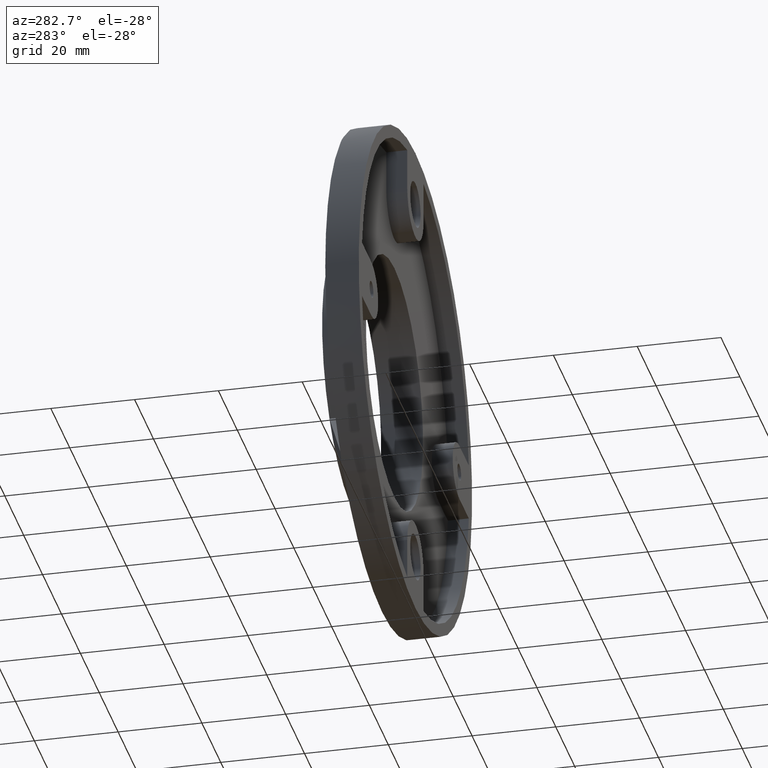
[diagram: clean part render]
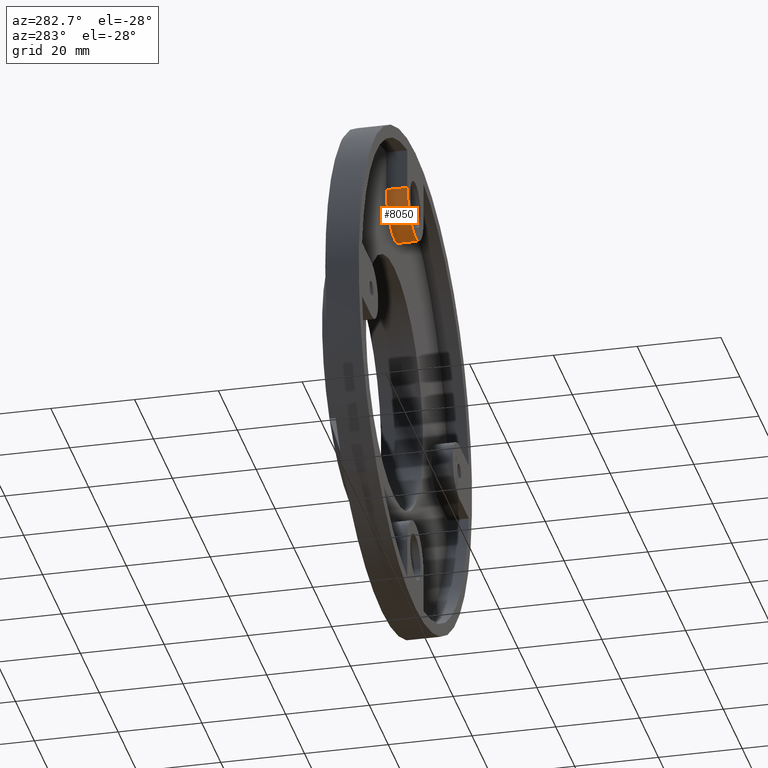
[diagram: same view with one face highlighted and labeled with its STEP entity id]
A machine part, auxiliary view. The second image highlights one B-rep face of the part: STEP entity #8050.
In plain terms, the highlighted cylindrical surface (partial cylindrical patch) has radius 8.625 mm, axis along (-0, -1, -0).
Its self-contained STEP definition (entity closure, byte-faithful):
#54 = DIRECTION ( 'NONE',  ( -0.000000000000000000, -1.000000000000000000, -0.000000000000000000 ) ) ;
#403 = FACE_OUTER_BOUND ( 'NONE', #4247, .T. ) ;
#774 = DIRECTION ( 'NONE',  ( -0.000000000000000000, -1.000000000000000000, -0.000000000000000000 ) ) ;
#1824 = ORIENTED_EDGE ( 'NONE', *, *, #7552, .F. ) ;
#2198 = CARTESIAN_POINT ( 'NONE',  ( -1.138921523207038456E-14, 5.000000000000000000, 46.50000000000000000 ) ) ;
#2333 = EDGE_CURVE ( 'NONE', #4658, #8245, #7804, .T. ) ;
#2845 = VECTOR ( 'NONE', #774, 1000.000000000000000 ) ;
#2881 = AXIS2_PLACEMENT_3D ( 'NONE', #2198, #4363, #6364 ) ;
#2936 = CARTESIAN_POINT ( 'NONE',  ( -8.625000000000007105, 5.000000000000000000, 46.50000000000000000 ) ) ;
#3192 = CIRCLE ( 'NONE', #4010, 8.625000000000000000 ) ;
#4010 = AXIS2_PLACEMENT_3D ( 'NONE', #6680, #5476, #7573 ) ;
#4247 = EDGE_LOOP ( 'NONE', ( #11733, #11451, #1824, #4691 ) ) ;
#4363 = DIRECTION ( 'NONE',  ( -0.000000000000000000, -1.000000000000000000, -0.000000000000000000 ) ) ;
#4658 = VERTEX_POINT ( 'NONE', #6154 ) ;
#4691 = ORIENTED_EDGE ( 'NONE', *, *, #2333, .T. ) ;
#4834 = LINE ( 'NONE', #6928, #8664 ) ;
#5076 = CARTESIAN_POINT ( 'NONE',  ( -8.625000000000007105, 0.000000000000000000, 46.50000000000000000 ) ) ;
#5476 = DIRECTION ( 'NONE',  ( -0.000000000000000000, 1.000000000000000000, -0.000000000000000000 ) ) ;
#6154 = CARTESIAN_POINT ( 'NONE',  ( 8.624999999999996447, 5.000000000000000000, 46.50000000000000000 ) ) ;
#6364 = DIRECTION ( 'NONE',  ( 0.000000000000000000, 0.000000000000000000, -1.000000000000000000 ) ) ;
#6680 = CARTESIAN_POINT ( 'NONE',  ( -1.138921523207038456E-14, 0.000000000000000000, 46.50000000000000000 ) ) ;
#6920 = DIRECTION ( 'NONE',  ( 0.000000000000000000, 0.000000000000000000, -1.000000000000000000 ) ) ;
#6928 = CARTESIAN_POINT ( 'NONE',  ( -8.625000000000007105, 5.000000000000000000, 46.50000000000000000 ) ) ;
#6956 = CARTESIAN_POINT ( 'NONE',  ( -1.138921523207038456E-14, 5.000000000000000000, 46.50000000000000000 ) ) ;
#7084 = CYLINDRICAL_SURFACE ( 'NONE', #2881, 8.625000000000000000 ) ;
#7552 = EDGE_CURVE ( 'NONE', #4658, #9318, #10425, .T. ) ;
#7573 = DIRECTION ( 'NONE',  ( 0.000000000000000000, 0.000000000000000000, -1.000000000000000000 ) ) ;
#7804 = LINE ( 'NONE', #10839, #2845 ) ;
#8050 = ADVANCED_FACE ( 'NONE', ( #403 ), #7084, .T. ) ;
#8245 = VERTEX_POINT ( 'NONE', #11777 ) ;
#8664 = VECTOR ( 'NONE', #54, 1000.000000000000000 ) ;
#8707 = VERTEX_POINT ( 'NONE', #5076 ) ;
#9318 = VERTEX_POINT ( 'NONE', #2936 ) ;
#10425 = CIRCLE ( 'NONE', #12001, 8.625000000000000000 ) ;
#10839 = CARTESIAN_POINT ( 'NONE',  ( 8.624999999999996447, 5.000000000000000000, 46.50000000000000000 ) ) ;
#11144 = EDGE_CURVE ( 'NONE', #9318, #8707, #4834, .T. ) ;
#11451 = ORIENTED_EDGE ( 'NONE', *, *, #11144, .F. ) ;
#11733 = ORIENTED_EDGE ( 'NONE', *, *, #11975, .T. ) ;
#11777 = CARTESIAN_POINT ( 'NONE',  ( 8.624999999999996447, 0.000000000000000000, 46.50000000000000000 ) ) ;
#11975 = EDGE_CURVE ( 'NONE', #8245, #8707, #3192, .T. ) ;
#12001 = AXIS2_PLACEMENT_3D ( 'NONE', #6956, #12017, #6920 ) ;
#12017 = DIRECTION ( 'NONE',  ( -0.000000000000000000, 1.000000000000000000, -0.000000000000000000 ) ) ;